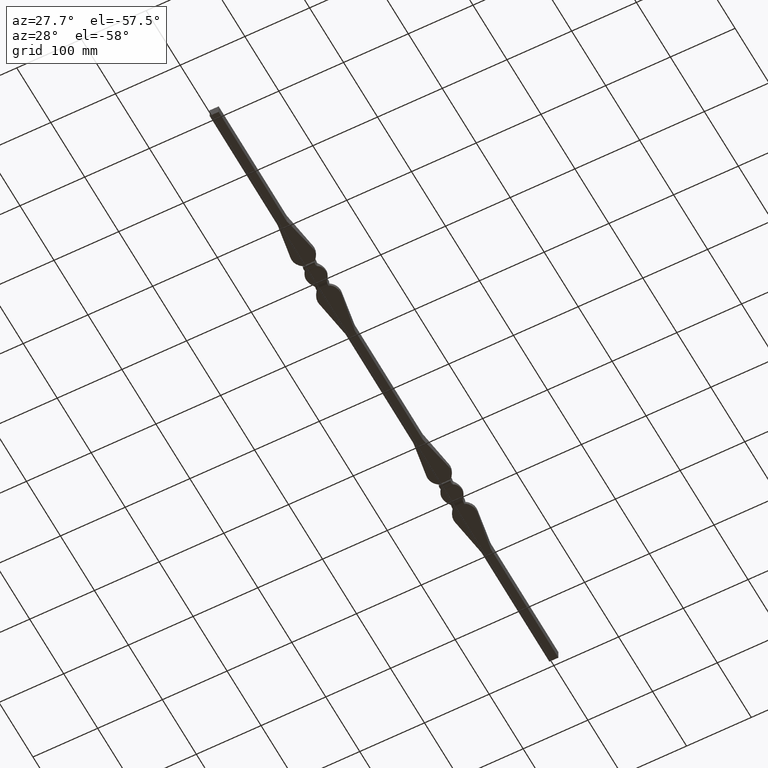
[diagram: clean part render]
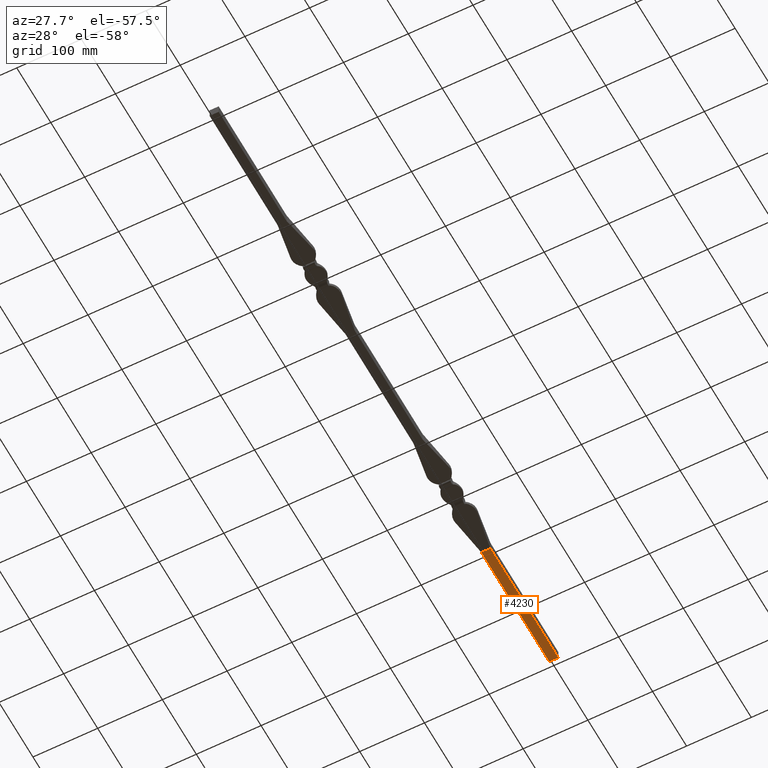
[diagram: same view with one face highlighted and labeled with its STEP entity id]
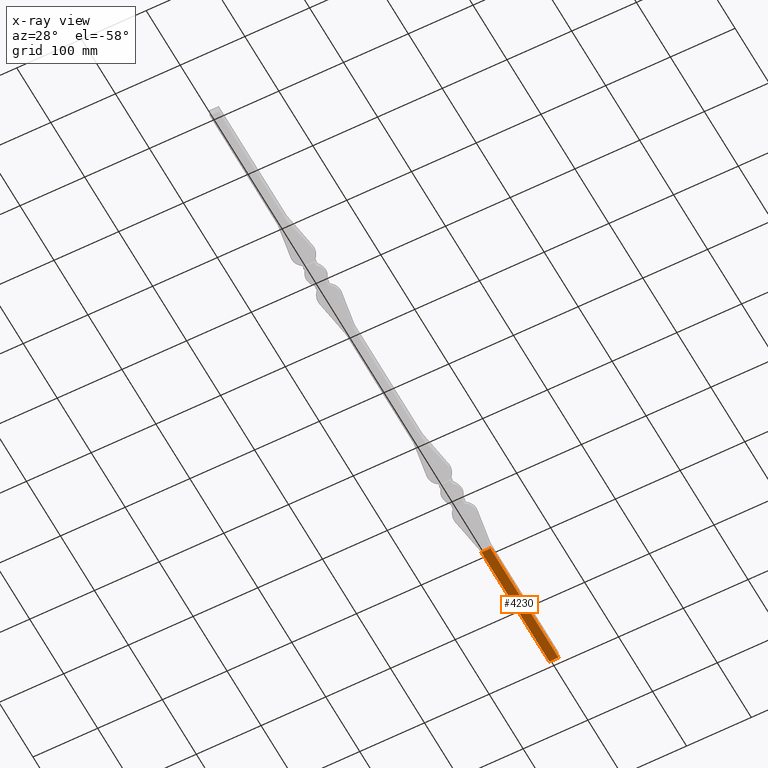
[diagram: x-ray of the same camera — body ghosted, the highlighted face saturated]
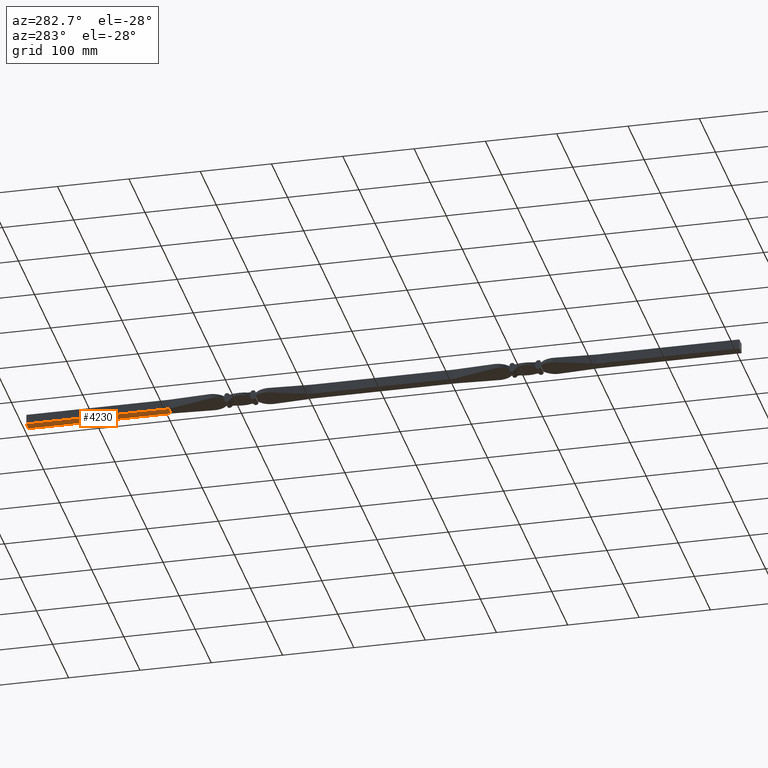
[diagram: same view with one face highlighted and labeled with its STEP entity id]
A machine part, auxiliary view. The second image highlights one B-rep face of the part: STEP entity #4230.
The next image is the same camera in x-ray: the body ghosted, the highlighted face saturated — about 0% of this face is hidden behind the body in this view.
A second angle (auxiliary view) of the same face is appended — the face is thin or edge-on in the first view.
In plain terms, the highlighted planar face has unit normal (0, 0, 1).
Its self-contained STEP definition (entity closure, byte-faithful):
#133 = VECTOR ( 'NONE', #7381, 1000.000000000000000 ) ;
#600 = CARTESIAN_POINT ( 'NONE',  ( -7.000000000000002665, 100.0000000000000000, -7.000000000000000000 ) ) ;
#1121 = EDGE_CURVE ( 'NONE', #2707, #12057, #11258, .T. ) ;
#1179 = EDGE_CURVE ( 'NONE', #3096, #2707, #4713, .T. ) ;
#1227 = DIRECTION ( 'NONE',  ( 1.000000000000000000, 0.000000000000000000, -0.000000000000000000 ) ) ;
#1551 = CARTESIAN_POINT ( 'NONE',  ( 6.999999999999998224, 300.0000000000000000, -7.000000000000000000 ) ) ;
#1649 = EDGE_CURVE ( 'NONE', #3096, #7971, #3204, .T. ) ;
#1753 = ORIENTED_EDGE ( 'NONE', *, *, #3178, .F. ) ;
#2707 = VERTEX_POINT ( 'NONE', #11874 ) ;
#3096 = VERTEX_POINT ( 'NONE', #1551 ) ;
#3109 = CARTESIAN_POINT ( 'NONE',  ( 6.999999999999998224, 619.7989898732232632, -7.000000000000000000 ) ) ;
#3178 = EDGE_CURVE ( 'NONE', #7971, #12057, #4822, .T. ) ;
#3204 = LINE ( 'NONE', #6781, #5517 ) ;
#4230 = ADVANCED_FACE ( 'NONE', ( #11207 ), #8130, .F. ) ;
#4305 = CARTESIAN_POINT ( 'NONE',  ( -7.000000000000002665, 300.0000000000000000, -7.000000000000000000 ) ) ;
#4713 = LINE ( 'NONE', #3109, #5530 ) ;
#4822 = LINE ( 'NONE', #6223, #133 ) ;
#5064 = CARTESIAN_POINT ( 'NONE',  ( -7.000000000000002665, 100.0000000000000000, -7.000000000000000000 ) ) ;
#5517 = VECTOR ( 'NONE', #6687, 1000.000000000000000 ) ;
#5530 = VECTOR ( 'NONE', #13679, 1000.000000000000000 ) ;
#6223 = CARTESIAN_POINT ( 'NONE',  ( -7.000000000000002665, 619.7989898732232632, -7.000000000000000000 ) ) ;
#6687 = DIRECTION ( 'NONE',  ( -1.000000000000000000, 0.000000000000000000, 0.000000000000000000 ) ) ;
#6781 = CARTESIAN_POINT ( 'NONE',  ( -7.000000000000002665, 300.0000000000000000, -7.000000000000000000 ) ) ;
#7381 = DIRECTION ( 'NONE',  ( -0.000000000000000000, -1.000000000000000000, -0.000000000000000000 ) ) ;
#7971 = VERTEX_POINT ( 'NONE', #4305 ) ;
#8130 = PLANE ( 'NONE',  #13087 ) ;
#8514 = ORIENTED_EDGE ( 'NONE', *, *, #1649, .F. ) ;
#9489 = CARTESIAN_POINT ( 'NONE',  ( -7.000000000000002665, 619.7989898732232632, -7.000000000000000000 ) ) ;
#9818 = ORIENTED_EDGE ( 'NONE', *, *, #1121, .T. ) ;
#10586 = EDGE_LOOP ( 'NONE', ( #8514, #11922, #9818, #1753 ) ) ;
#11207 = FACE_OUTER_BOUND ( 'NONE', #10586, .T. ) ;
#11258 = LINE ( 'NONE', #5064, #13752 ) ;
#11874 = CARTESIAN_POINT ( 'NONE',  ( 7.000000000000000888, 100.0000000000000000, -7.000000000000000000 ) ) ;
#11922 = ORIENTED_EDGE ( 'NONE', *, *, #1179, .T. ) ;
#12057 = VERTEX_POINT ( 'NONE', #600 ) ;
#12590 = DIRECTION ( 'NONE',  ( -1.000000000000000000, -0.000000000000000000, -0.000000000000000000 ) ) ;
#13087 = AXIS2_PLACEMENT_3D ( 'NONE', #9489, #13636, #1227 ) ;
#13636 = DIRECTION ( 'NONE',  ( 0.000000000000000000, 0.000000000000000000, 1.000000000000000000 ) ) ;
#13679 = DIRECTION ( 'NONE',  ( -0.000000000000000000, -1.000000000000000000, -0.000000000000000000 ) ) ;
#13752 = VECTOR ( 'NONE', #12590, 1000.000000000000000 ) ;